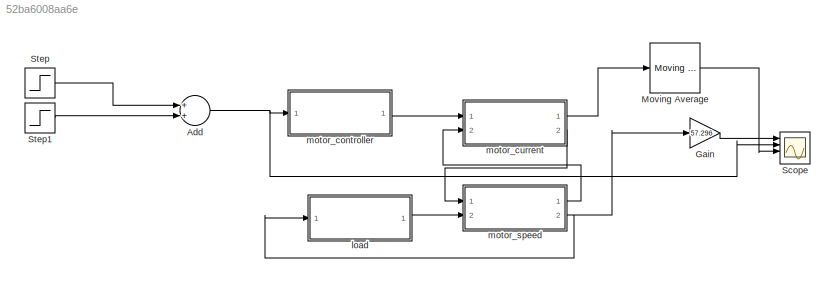
MODEL slx_52ba6008aa6e
KIND model
CONFIG AbsTol = auto
CONFIG EnableMultiTasking = off
CONFIG FixedStep = auto
CONFIG MaxStep = auto
CONFIG MinStep = auto
CONFIG RelTol = 1e-3
CONFIG SampleTimeConstraint = Unconstrained
CONFIG Solver = VariableStepAuto
CONFIG SolverName = VariableStepAuto
CONFIG StartTime = 0.0
CONFIG StopTime = 3
BLOCK [Sum] Add
  InputSameDT = off
  OutDataTypeStr = Inherit: Inherit via internal rule
  Ports = [2, 1]
  SaturateOnIntegerOverflow = off
BLOCK [Gain] Gain
  Gain = 57.296
  OutDataTypeStr = Inherit: Inherit via internal rule
  ParamDataTypeStr = Inherit: Inherit via internal rule
  SaturateOnIntegerOverflow = off
BLOCK [Reference] Moving Average  REF=dspstat3/Moving
Average
  Ports = [1, 1]
  SourceBlock = dspstat3/Moving\nAverage
  SourceProductBaseCode = DS
  SourceProductName = DSP System Toolbox
  SourceType = dsp.simulink.MovingAverage
BLOCK [Scope] Scope
  Floating = off
  NumInputPorts = 4
  Ports = [4]
  ScopeSpecificationString = Simulink.scopes.TimeScopeBlockCfg('CurrentConfiguration', extmgr.ConfigurationSet(extmgr.Configuration('Core','General UI',true),extmgr.Configuration('Core','Source UI',true),extmgr.Configuration('Sources','WiredSimulink',true),extmgr.Configuration('Visuals','Time Domain',true,'SerializedDisplays',{struct('MinYLimReal','-4.56927','MaxYLimReal','40.98147','YLabelReal','','MinYLimMag','0.00000','Max...<+1435ch>
BLOCK [Step] Step
  After = 1.125
  SampleTime = 0
BLOCK [Step] Step1
  After = 3
  SampleTime = 0
  Time = 2
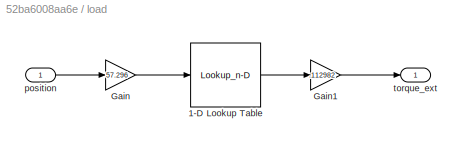
BLOCK [SubSystem] load
  Ports = [1, 1]
  RequestExecContextInheritance = off
BLOCK [Lookup_n-D] load/1-D Lookup Table
  BreakpointsForDimension1 = [0, 0.01, 57.99, 58]
  InternalRulePriority = Speed
  NumberOfTableDimensions = 1
  Ports = [1, 1]
  RndMeth = Simplest
  Table = [20, 6.9, 8.62, 20]
BLOCK [Gain] load/Gain
  Gain = 57.296
  OutDataTypeStr = Inherit: Inherit via internal rule
  ParamDataTypeStr = Inherit: Inherit via internal rule
  SaturateOnIntegerOverflow = off
BLOCK [Gain] load/Gain1
  Gain = .112982
  OutDataTypeStr = Inherit: Inherit via internal rule
  ParamDataTypeStr = Inherit: Inherit via internal rule
  SaturateOnIntegerOverflow = off
BLOCK [Inport] load/position
  IconDisplay = Port number
BLOCK [Outport] load/torque_ext
  IconDisplay = Port number
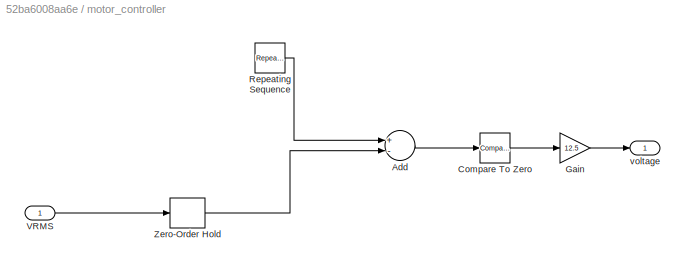
BLOCK [SubSystem] motor_controller
  Ports = [1, 1]
  RequestExecContextInheritance = off
BLOCK [Sum] motor_controller/Add
  InputSameDT = off
  Inputs = +-
  OutDataTypeStr = Inherit: Inherit via internal rule
  Ports = [2, 1]
  SaturateOnIntegerOverflow = off
BLOCK [Reference] motor_controller/Compare To Zero  REF=simulink/Logic and Bit
Operations/Compare
To Zero
  Ports = [1, 1]
  SourceBlock = simulink/Logic and Bit\nOperations/Compare\nTo Zero
  SourceProductBaseCode = SL
  SourceProductName = Simulink
  SourceType = Compare To Zero
BLOCK [Gain] motor_controller/Gain
  Gain = 12.5
  OutDataTypeStr = Inherit: Inherit via internal rule
  ParamDataTypeStr = Inherit: Inherit via internal rule
  SaturateOnIntegerOverflow = off
BLOCK [Reference] motor_controller/Repeating Sequence  REF=simulink/Sources/Repeating
Sequence
  Ports = [0, 1]
  SourceBlock = simulink/Sources/Repeating\nSequence
  SourceProductBaseCode = SL
  SourceProductName = Simulink
  SourceType = Repeating table
BLOCK [Inport] motor_controller/VRMS
  IconDisplay = Port number
BLOCK [ZeroOrderHold] motor_controller/Zero-Order Hold
  SampleTime = .01
BLOCK [Outport] motor_controller/voltage
  IconDisplay = Port number
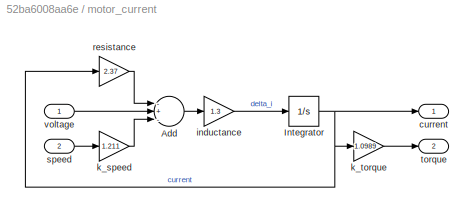
BLOCK [SubSystem] motor_current
  Ports = [2, 2]
  RequestExecContextInheritance = off
BLOCK [Sum] motor_current/Add
  InputSameDT = off
  Inputs = -+-
  OutDataTypeStr = Inherit: Inherit via internal rule
  Ports = [3, 1]
  SaturateOnIntegerOverflow = off
BLOCK [Integrator] motor_current/Integrator
  Ports = [1, 1]
BLOCK [Outport] motor_current/current
  IconDisplay = Port number
BLOCK [Gain] motor_current/inductance
  Gain = 1.3
  OutDataTypeStr = Inherit: Inherit via internal rule
  ParamDataTypeStr = Inherit: Inherit via internal rule
  SaturateOnIntegerOverflow = off
BLOCK [Gain] motor_current/k_speed
  Gain = 1.211
  OutDataTypeStr = Inherit: Inherit via internal rule
  ParamDataTypeStr = Inherit: Inherit via internal rule
  SaturateOnIntegerOverflow = off
BLOCK [Gain] motor_current/k_torque
  Gain = 1.0989
  OutDataTypeStr = Inherit: Inherit via internal rule
  ParamDataTypeStr = Inherit: Inherit via internal rule
  SaturateOnIntegerOverflow = off
BLOCK [Gain] motor_current/resistance
  Gain = 2.37
  OutDataTypeStr = Inherit: Inherit via internal rule
  ParamDataTypeStr = Inherit: Inherit via internal rule
  SaturateOnIntegerOverflow = off
BLOCK [Inport] motor_current/speed
  IconDisplay = Port number
  Port = 2
BLOCK [Outport] motor_current/torque
  IconDisplay = Port number
  Port = 2
BLOCK [Inport] motor_current/voltage
  IconDisplay = Port number
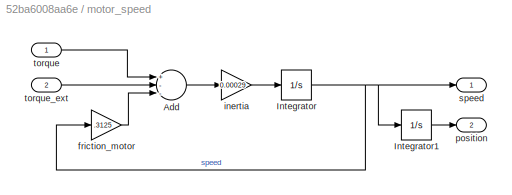
BLOCK [SubSystem] motor_speed
  Ports = [2, 2]
  RequestExecContextInheritance = off
BLOCK [Sum] motor_speed/Add
  InputSameDT = off
  Inputs = +--
  OutDataTypeStr = Inherit: Inherit via internal rule
  Ports = [3, 1]
  SaturateOnIntegerOverflow = off
BLOCK [Integrator] motor_speed/Integrator
  Ports = [1, 1]
BLOCK [Integrator] motor_speed/Integrator1
  Ports = [1, 1]
BLOCK [Gain] motor_speed/friction_motor
  Gain = .3125
  OutDataTypeStr = Inherit: Inherit via internal rule
  ParamDataTypeStr = Inherit: Inherit via internal rule
  SaturateOnIntegerOverflow = off
BLOCK [Gain] motor_speed/inertia
  Gain = 0.00029
  OutDataTypeStr = Inherit: Inherit via internal rule
  ParamDataTypeStr = Inherit: Inherit via internal rule
  SaturateOnIntegerOverflow = off
BLOCK [Outport] motor_speed/position
  IconDisplay = Port number
  Port = 2
BLOCK [Outport] motor_speed/speed
  IconDisplay = Port number
BLOCK [Inport] motor_speed/torque
  IconDisplay = Port number
BLOCK [Inport] motor_speed/torque_ext
  IconDisplay = Port number
  Port = 2
NET Add:1 -> Scope:2, motor_controller:1
LINE Gain:1 -> Scope:1
LINE Moving Average:1 -> Scope:3
LINE Step1:1 -> Add:2
LINE Step:1 -> Add:1
LINE load/1-D Lookup Table:1 -> load/Gain1:1
LINE load/Gain1:1 -> load/torque_ext:1
LINE load/Gain:1 -> load/1-D Lookup Table:1
LINE load/position:1 -> load/Gain:1
LINE load:1 -> motor_speed:2
LINE motor_controller/Add:1 -> motor_controller/Compare To Zero:1
LINE motor_controller/Compare To Zero:1 -> motor_controller/Gain:1
LINE motor_controller/Gain:1 -> motor_controller/voltage:1
LINE motor_controller/Repeating Sequence:1 -> motor_controller/Add:1
LINE motor_controller/VRMS:1 -> motor_controller/Zero-Order Hold:1
LINE motor_controller/Zero-Order Hold:1 -> motor_controller/Add:2
LINE motor_controller:1 -> motor_current:1
LINE motor_current/Add:1 -> motor_current/inductance:1
NET motor_current/Integrator:1 -> motor_current/current:1, motor_current/k_torque:1, motor_current/resistance:1
LINE motor_current/inductance:1 -> motor_current/Integrator:1
LINE motor_current/k_speed:1 -> motor_current/Add:3
LINE motor_current/k_torque:1 -> motor_current/torque:1
LINE motor_current/resistance:1 -> motor_current/Add:1
LINE motor_current/speed:1 -> motor_current/k_speed:1
LINE motor_current/voltage:1 -> motor_current/Add:2
LINE motor_current:1 -> Moving Average:1
LINE motor_current:2 -> motor_speed:1
LINE motor_speed/Add:1 -> motor_speed/inertia:1
LINE motor_speed/Integrator1:1 -> motor_speed/position:1
NET motor_speed/Integrator:1 -> motor_speed/Integrator1:1, motor_speed/friction_motor:1, motor_speed/speed:1
LINE motor_speed/friction_motor:1 -> motor_speed/Add:3
LINE motor_speed/inertia:1 -> motor_speed/Integrator:1
LINE motor_speed/torque:1 -> motor_speed/Add:1
LINE motor_speed/torque_ext:1 -> motor_speed/Add:2
LINE motor_speed:1 -> motor_current:2
NET motor_speed:2 -> Gain:1, load:1
note: NET lines group one-source signal fan-out (src -> all destinations, sorted); 1:1 wires keep LINE
